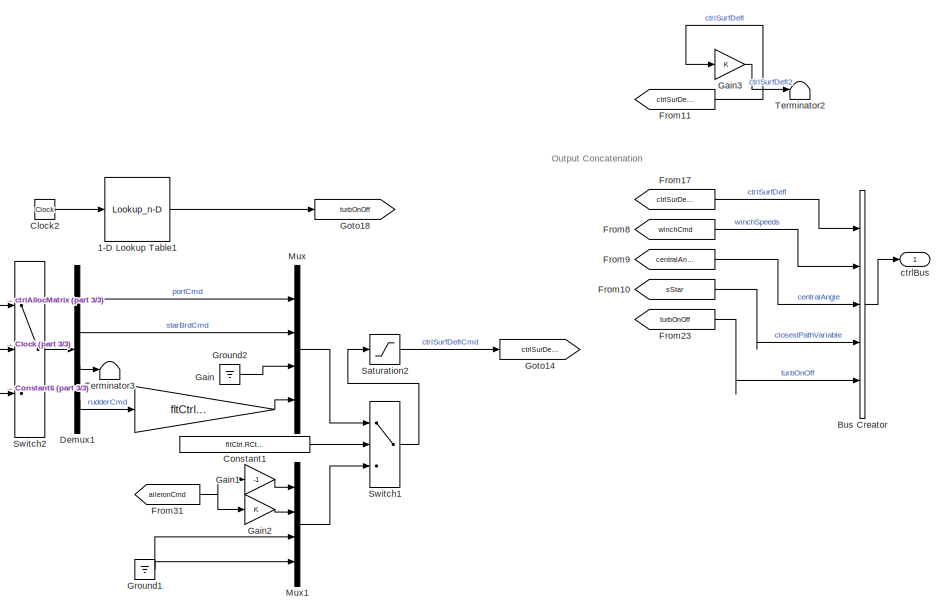
[diagram: root canvas - part 1/3, right side, full height]
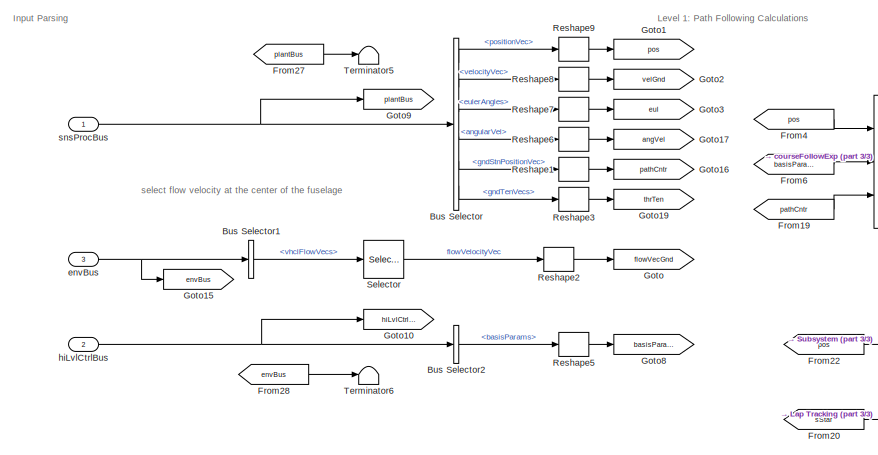
[diagram: root canvas - part 2/3, middle left region]
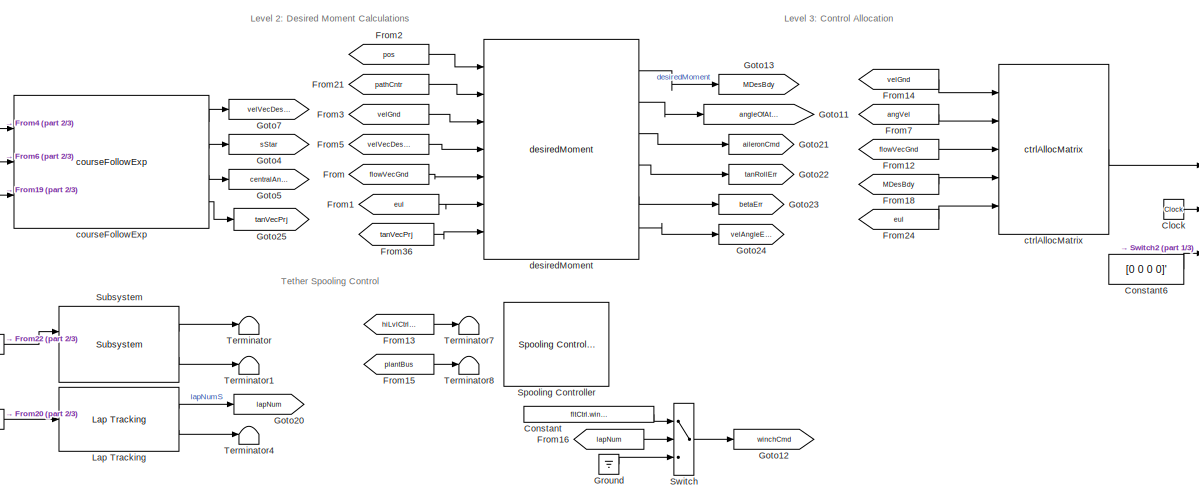
[diagram: root canvas - part 3/3, center side, full height]
MODEL slx_18378b97efbc
KIND library
CONFIG AbsTol = auto
CONFIG EnableMultiTasking = off
CONFIG FixedStep = auto
CONFIG MaxStep = auto
CONFIG MinStep = auto
CONFIG RelTol = 1e-3
CONFIG SampleTimeConstraint = Unconstrained
CONFIG SolverName = VariableStepAuto
CONFIG StartTime = 0.0
CONFIG StopTime = 10.0
BLOCK [Lookup_n-D] 1-D Lookup Table1
  BreakpointsForDimension1 = [0 1000 2000]
  InputPortMap = u0
  InternalRulePriority = Speed
  InterpMethod = Flat
  NumberOfTableDimensions = 1
  Ports = [1, 1]
  RndMeth = Simplest
  Table = [0 0 0]
BLOCK [BusCreator] Bus Creator
  DisplayOption = bar
  InheritFromInputs = off
  Inputs = 5
  OutDataTypeStr = Bus: fltCtrlBus
  Ports = [5, 1]
BLOCK [BusSelector] Bus Selector
  OutputSignals = positionVec,velocityVec,eulerAngles,angularVel,gndStnPositionVec,gndTenVecs
  Ports = [1, 6]
BLOCK [BusSelector] Bus Selector1
  OutputSignals = vhclFlowVecs
  Ports = [1, 1]
BLOCK [BusSelector] Bus Selector2
  OutputSignals = basisParams
  Ports = [1, 1]
BLOCK [Clock] Clock
BLOCK [Clock] Clock2
BLOCK [Constant] Constant
  Value = fltCtrl.winchSpeedIn.Value
BLOCK [Constant] Constant1
  Value = fltCtrl.RCtrl.Value
BLOCK [Constant] Constant6
  Value = [0 0 0 0]'
BLOCK [Demux] Demux1
  Ports = [1, 4]
BLOCK [From] From
  GotoTag = flowVecGnd
BLOCK [From] From1
  GotoTag = eul
BLOCK [From] From10
  GotoTag = sStar
BLOCK [From] From11
  GotoTag = ctrlSurDefl
BLOCK [From] From12
  GotoTag = flowVecGnd
BLOCK [From] From13
  GotoTag = hiLvlCtrlBus
BLOCK [From] From14
  GotoTag = velGnd
BLOCK [From] From15
  GotoTag = plantBus
BLOCK [From] From16
  GotoTag = lapNum
BLOCK [From] From17
  GotoTag = ctrlSurDefl
BLOCK [From] From18
  GotoTag = MDesBdy
BLOCK [From] From19
  GotoTag = pathCntr
BLOCK [From] From2
  GotoTag = pos
BLOCK [From] From20
  GotoTag = sStar
BLOCK [From] From21
  GotoTag = pathCntr
BLOCK [From] From22
  GotoTag = pos
BLOCK [From] From23
  GotoTag = turbOnOff
BLOCK [From] From24
  GotoTag = eul
BLOCK [From] From27
  GotoTag = plantBus
BLOCK [From] From28
  GotoTag = envBus
BLOCK [From] From3
  GotoTag = velGnd
BLOCK [From] From31
  GotoTag = aileronCmd
BLOCK [From] From36
  GotoTag = tanVecPrj
BLOCK [From] From4
  GotoTag = pos
BLOCK [From] From5
  GotoTag = velVecDesGnd
BLOCK [From] From6
  GotoTag = basisParams
BLOCK [From] From7
  GotoTag = angVel
BLOCK [From] From8
  GotoTag = winchCmd
BLOCK [From] From9
  GotoTag = centralAngle
BLOCK [Gain] Gain
  Gain = fltCtrl.rudderGain.Value
BLOCK [Gain] Gain1
  Gain = -1
BLOCK [Gain] Gain2
BLOCK [Gain] Gain3
BLOCK [Goto] Goto
  GotoTag = flowVecGnd
BLOCK [Goto] Goto1
  GotoTag = pos
BLOCK [Goto] Goto10
  GotoTag = hiLvlCtrlBus
BLOCK [Goto] Goto11
  GotoTag = angleOfAttack
BLOCK [Goto] Goto12
  GotoTag = winchCmd
BLOCK [Goto] Goto13
  GotoTag = MDesBdy
BLOCK [Goto] Goto14
  GotoTag = ctrlSurDefl
BLOCK [Goto] Goto15
  GotoTag = envBus
BLOCK [Goto] Goto16
  GotoTag = pathCntr
BLOCK [Goto] Goto17
  GotoTag = angVel
BLOCK [Goto] Goto18
  GotoTag = turbOnOff
BLOCK [Goto] Goto19
  GotoTag = thrTen
BLOCK [Goto] Goto2
  GotoTag = velGnd
BLOCK [Goto] Goto20
  GotoTag = lapNum
BLOCK [Goto] Goto21
  GotoTag = aileronCmd
BLOCK [Goto] Goto22
  GotoTag = tanRollErr
BLOCK [Goto] Goto23
  GotoTag = betaErr
BLOCK [Goto] Goto24
  GotoTag = velAngleErr
BLOCK [Goto] Goto25
  GotoTag = tanVecPrj
BLOCK [Goto] Goto3
  GotoTag = eul
BLOCK [Goto] Goto4
  GotoTag = sStar
BLOCK [Goto] Goto5
  GotoTag = centralAngle
BLOCK [Goto] Goto7
  GotoTag = velVecDesGnd
BLOCK [Goto] Goto8
  GotoTag = basisParams
BLOCK [Goto] Goto9
  GotoTag = plantBus
BLOCK [Ground] Ground
BLOCK [Ground] Ground1
BLOCK [Ground] Ground2
BLOCK [Reference] Lap Tracking  REF=pathFollowingControllerExp_cl/pathFollowingControllerExp/Lap Tracking
  Ports = [1, 2]
  SourceBlock = pathFollowingControllerExp_cl/pathFollowingControllerExp/Lap Tracking
  SourceType = SubSystem
BLOCK [Mux] Mux
  DisplayOption = bar
  Ports = [4, 1]
BLOCK [Mux] Mux1
  DisplayOption = bar
  Ports = [4, 1]
BLOCK [Reshape] Reshape1
  OutputDimensionality = Column vector (2-D)
  Ports = [1, 1]
BLOCK [Reshape] Reshape2
  OutputDimensionality = Column vector (2-D)
  Ports = [1, 1]
BLOCK [Reshape] Reshape3
  OutputDimensionality = Column vector (2-D)
  Ports = [1, 1]
BLOCK [Reshape] Reshape5
  OutputDimensionality = Column vector (2-D)
  Ports = [1, 1]
BLOCK [Reshape] Reshape6
  OutputDimensionality = Column vector (2-D)
  Ports = [1, 1]
BLOCK [Reshape] Reshape7
  OutputDimensionality = Column vector (2-D)
  Ports = [1, 1]
BLOCK [Reshape] Reshape8
  OutputDimensionality = Column vector (2-D)
  Ports = [1, 1]
BLOCK [Reshape] Reshape9
  OutputDimensionality = Column vector (2-D)
  Ports = [1, 1]
BLOCK [Saturate] Saturation2
  LowerLimit = pathCtrl.controlSigMax.lowerLimit.Value
  UpperLimit = pathCtrl.controlSigMax.upperLimit.Value
BLOCK [Selector] Selector
  IndexOptions = Select all,Index vector (dialog)
  Indices = [1 3],5
  InputPortWidth = 3
  NumberOfDimensions = 2
  OutputSizes = 1,1
  Ports = [1, 1]
BLOCK [Reference] Spooling Controller   REF=pathFollowingControllerExp_cl/pathFollowingControllerExp/Spooling Controller 
  Commented = on
  Ports = [2, 1]
  SourceBlock = pathFollowingControllerExp_cl/pathFollowingControllerExp/Spooling Controller
  SourceType = SubSystem
BLOCK [Reference] Subsystem  REF=pathFollowingControllerExp_cl/pathFollowingControllerExp/Subsystem
  Ports = [2, 2]
  SourceBlock = pathFollowingControllerExp_cl/pathFollowingControllerExp/Subsystem
BLOCK [Switch] Switch
  InputSameDT = off
  SaturateOnIntegerOverflow = off
  Threshold = fltCtrl.firstSpoolLap.Value
BLOCK [Switch] Switch1
  Criteria = u2 > Threshold
  InputSameDT = off
  SaturateOnIntegerOverflow = off
  Threshold = .5
BLOCK [Switch] Switch2
  Criteria = u2 > Threshold
  InputSameDT = off
  SaturateOnIntegerOverflow = off
  Threshold = pathCtrl.startControl.Value
BLOCK [Terminator] Terminator
BLOCK [Terminator] Terminator1
BLOCK [Terminator] Terminator2
BLOCK [Terminator] Terminator3
BLOCK [Terminator] Terminator4
BLOCK [Terminator] Terminator5
BLOCK [Terminator] Terminator6
BLOCK [Terminator] Terminator7
BLOCK [Terminator] Terminator8
BLOCK [Reference] courseFollowExp  REF=courseFollowExp_cl/courseFollowExp
  Ports = [3, 4]
  SourceBlock = courseFollowExp_cl/courseFollowExp
  SourceType = SubSystem
BLOCK [Reference] ctrlAllocMatrix  REF=ctrlAllocMatrix_cl/ctrlAllocMatrix
  Ports = [5, 1]
  SourceBlock = ctrlAllocMatrix_cl/ctrlAllocMatrix
BLOCK [Outport] ctrlBus
  OutDataTypeStr = Bus: fltCtrlBus
  VectorParamsAs1DForOutWhenUnconnected = off
BLOCK [Reference] desiredMoment  REF=pathFollowingControllerExp_cl/pathFollowingControllerExp/desiredMoment
  Ports = [7, 6]
  SourceBlock = pathFollowingControllerExp_cl/pathFollowingControllerExp/desiredMoment
  SourceType = SubSystem
BLOCK [Inport] envBus
  OutDataTypeStr = Bus: envBus
  Port = 3
BLOCK [Inport] hiLvlCtrlBus
  OutDataTypeStr = Bus: hiLvlCtrlBus
  Port = 2
BLOCK [Inport] snsProcBus
  OutDataTypeStr = Bus: sensorsProcessingBus
ANNOTATION (root): Input Parsing
ANNOTATION (root): Level 1: Path Following Calculations
ANNOTATION (root): Level 2: Desired Moment Calculations
ANNOTATION (root): Level 3: Control Allocation
ANNOTATION (root): Output Concatenation
ANNOTATION (root): Tether Spooling Control
ANNOTATION (root): select flow velocity at the center of the fuselage
LINE 1-D Lookup Table1:1 -> Goto18:1
LINE Bus Creator:1 -> ctrlBus:1
LINE Bus Selector1:1 -> Selector:1
LINE Bus Selector2:1 -> Reshape5:1
LINE Bus Selector:1 -> Reshape9:1
LINE Bus Selector:2 -> Reshape8:1
LINE Bus Selector:3 -> Reshape7:1
LINE Bus Selector:4 -> Reshape6:1
LINE Bus Selector:5 -> Reshape1:1
LINE Bus Selector:6 -> Reshape3:1
LINE Clock2:1 -> 1-D Lookup Table1:1
LINE Clock:1 -> Switch2:2
LINE Constant1:1 -> Switch1:2
LINE Constant6:1 -> Switch2:3
LINE Constant:1 -> Switch:1
LINE Demux1:1 -> Mux:1
LINE Demux1:2 -> Mux:2
LINE Demux1:3 -> Terminator3:1
LINE Demux1:4 -> Gain:1
LINE From10:1 -> Bus Creator:4
LINE From11:1 -> Gain3:1
LINE From12:1 -> ctrlAllocMatrix:3
LINE From13:1 -> Terminator7:1
LINE From14:1 -> ctrlAllocMatrix:1
LINE From15:1 -> Terminator8:1
LINE From16:1 -> Switch:2
LINE From17:1 -> Bus Creator:1
LINE From18:1 -> ctrlAllocMatrix:4
LINE From19:1 -> courseFollowExp:3
LINE From1:1 -> desiredMoment:6
LINE From20:1 -> Lap Tracking:1
LINE From21:1 -> desiredMoment:2
LINE From22:1 -> Subsystem:1
LINE From23:1 -> Bus Creator:5
LINE From24:1 -> ctrlAllocMatrix:5
LINE From27:1 -> Terminator5:1
LINE From28:1 -> Terminator6:1
LINE From2:1 -> desiredMoment:1
NET From31:1 -> Gain1:1, Gain2:1
LINE From36:1 -> desiredMoment:7
LINE From3:1 -> desiredMoment:3
LINE From4:1 -> courseFollowExp:1
LINE From5:1 -> desiredMoment:4
LINE From6:1 -> courseFollowExp:2
LINE From7:1 -> ctrlAllocMatrix:2
LINE From8:1 -> Bus Creator:2
LINE From9:1 -> Bus Creator:3
LINE From:1 -> desiredMoment:5
LINE Gain1:1 -> Mux1:1
LINE Gain2:1 -> Mux1:2
LINE Gain3:1 -> Terminator2:1
LINE Gain:1 -> Mux:4
NET Ground1:1 -> Mux1:3, Mux1:4
LINE Ground2:1 -> Mux:3
LINE Ground:1 -> Switch:3
LINE Lap Tracking:1 -> Goto20:1
LINE Lap Tracking:2 -> Terminator4:1
LINE Mux1:1 -> Switch1:3
LINE Mux:1 -> Switch1:1
LINE Reshape1:1 -> Goto16:1
LINE Reshape2:1 -> Goto:1
LINE Reshape3:1 -> Goto19:1
LINE Reshape5:1 -> Goto8:1
LINE Reshape6:1 -> Goto17:1
LINE Reshape7:1 -> Goto3:1
LINE Reshape8:1 -> Goto2:1
LINE Reshape9:1 -> Goto1:1
LINE Saturation2:1 -> Goto14:1
LINE Selector:1 -> Reshape2:1
LINE Subsystem:1 -> Terminator:1
LINE Subsystem:2 -> Terminator1:1
LINE Switch1:1 -> Saturation2:1
LINE Switch2:1 -> Demux1:1
LINE Switch:1 -> Goto12:1
LINE courseFollowExp:1 -> Goto7:1
LINE courseFollowExp:2 -> Goto4:1
LINE courseFollowExp:3 -> Goto5:1
LINE courseFollowExp:4 -> Goto25:1
LINE ctrlAllocMatrix:1 -> Switch2:1
LINE desiredMoment:1 -> Goto13:1
LINE desiredMoment:2 -> Goto11:1
LINE desiredMoment:3 -> Goto21:1
LINE desiredMoment:4 -> Goto22:1
LINE desiredMoment:5 -> Goto23:1
LINE desiredMoment:6 -> Goto24:1
NET envBus:1 -> Bus Selector1:1, Goto15:1
NET hiLvlCtrlBus:1 -> Bus Selector2:1, Goto10:1
NET snsProcBus:1 -> Bus Selector:1, Goto9:1
note: NET lines group one-source signal fan-out (src -> all destinations, sorted); 1:1 wires keep LINE
